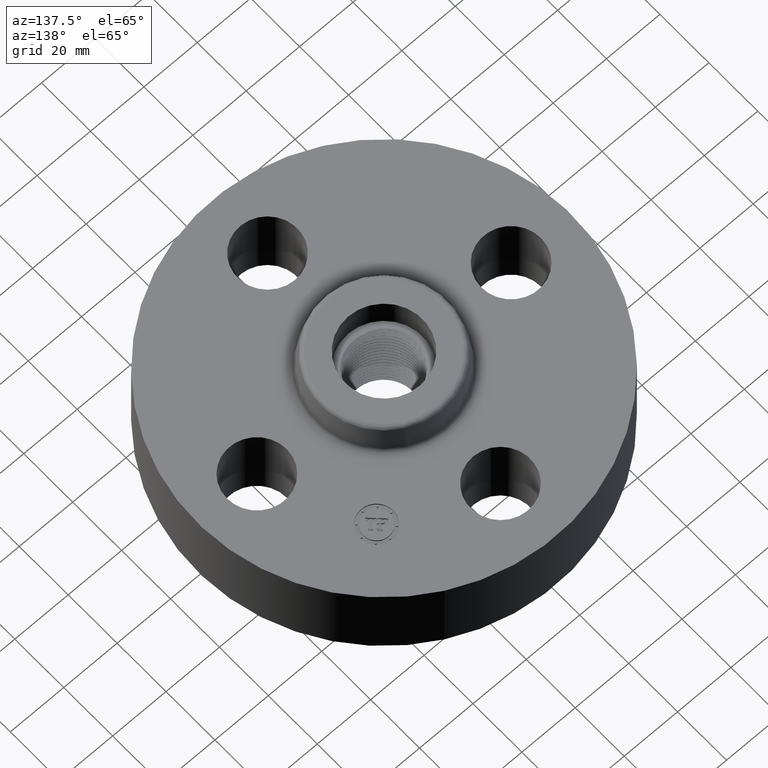
[diagram: clean part render]
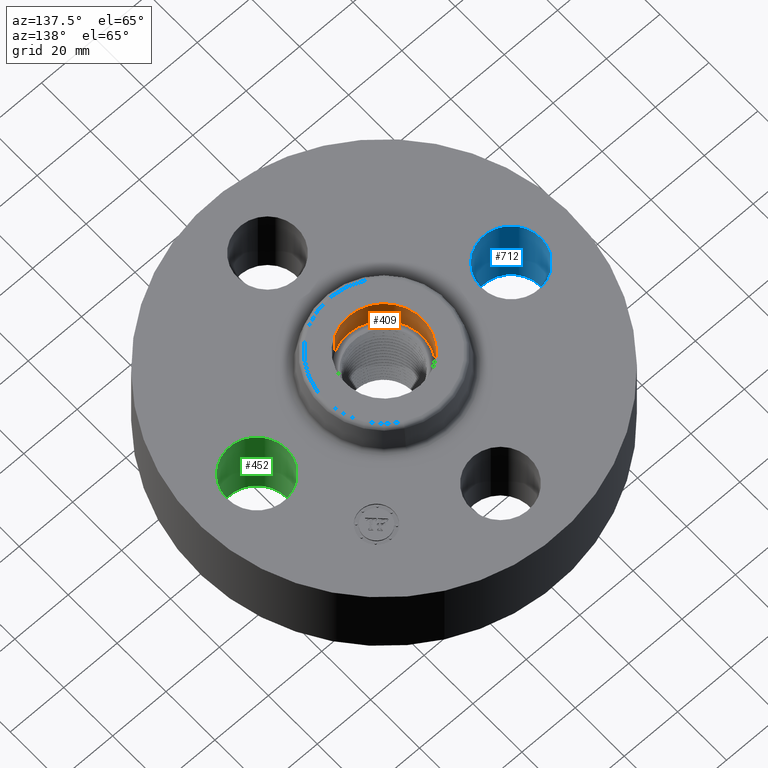
[diagram: same view with three faces highlighted in distinct colors, each labeled with its STEP entity id]
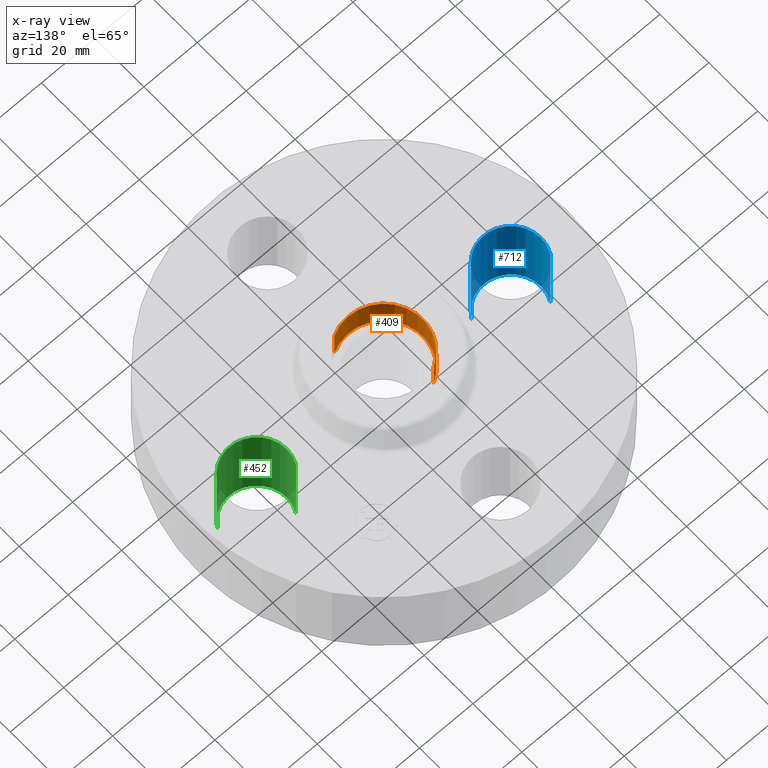
[diagram: x-ray of the same camera — body ghosted, the three highlighted faces saturated]
A machine part, auxiliary view with three faces highlighted in distinct colors.
The next image is the same camera in x-ray (body ghosted, the three faces saturated) — at least one of them is partly hidden behind the body in this view.
Their STEP definitions:

[orange] entity #409 — the highlighted cylindrical surface (partial cylindrical patch) has radius 14.478 mm, axis along (0, 0, 1).
#42=AXIS2_PLACEMENT_3D('Circle Axis2P3D',#40,#41,$) ;
#370=AXIS2_PLACEMENT_3D('Cylinder Axis2P3D',#367,#368,#369) ;
#400=AXIS2_PLACEMENT_3D('Circle Axis2P3D',#398,#399,$) ;
#40=CARTESIAN_POINT('Axis2P3D Location',(0.,0.,1.25000000001)) ;
#44=CARTESIAN_POINT('Vertex',(-0.273272557005,0.50022206028,1.25000000001)) ;
#46=CARTESIAN_POINT('Vertex',(0.273272557005,-0.50022206028,1.25000000001)) ;
#367=CARTESIAN_POINT('Axis2P3D Location',(0.,0.,1.25000000001)) ;
#376=CARTESIAN_POINT('Vertex',(-0.273272557005,0.50022206028,1.69000000001)) ;
#378=CARTESIAN_POINT('Vertex',(0.273272557005,-0.50022206028,1.69000000001)) ;
#381=CARTESIAN_POINT('Line Origine',(-0.273272557005,0.50022206028,1.47000000001)) ;
#386=CARTESIAN_POINT('Line Origine',(0.273272557005,-0.50022206028,1.47000000001)) ;
#398=CARTESIAN_POINT('Axis2P3D Location',(0.,0.,1.69000000001)) ;
#41=DIRECTION('Axis2P3D Direction',(0.,0.,0.0393700787402)) ;
#368=DIRECTION('Axis2P3D Direction',(0.,0.,0.0393700787402)) ;
#369=DIRECTION('Axis2P3D XDirection',(-0.0188750212049,0.0345504945626,0.)) ;
#382=DIRECTION('Vector Direction',(0.,0.,0.0393700787402)) ;
#387=DIRECTION('Vector Direction',(0.,0.,0.0393700787402)) ;
#399=DIRECTION('Axis2P3D Direction',(0.,0.,0.0393700787402)) ;
#383=VECTOR('Line Direction',#382,0.0393700787402) ;
#388=VECTOR('Line Direction',#387,0.0393700787402) ;
#404=ORIENTED_EDGE('',*,*,#402,.F.) ;
#405=ORIENTED_EDGE('',*,*,#390,.F.) ;
#406=ORIENTED_EDGE('',*,*,#48,.F.) ;
#407=ORIENTED_EDGE('',*,*,#385,.T.) ;
#409=ADVANCED_FACE('PartBody',(#408),#371,.F.) ;
#43=CIRCLE('generated circle',#42,0.570000000002) ;
#401=CIRCLE('generated circle',#400,0.570000000002) ;
#371=CYLINDRICAL_SURFACE('generated cylinder',#370,0.570000000002) ;
#48=EDGE_CURVE('',#45,#47,#43,.T.) ;
#385=EDGE_CURVE('',#45,#377,#384,.T.) ;
#390=EDGE_CURVE('',#47,#379,#389,.T.) ;
#402=EDGE_CURVE('',#379,#377,#401,.F.) ;
#403=EDGE_LOOP('',(#404,#405,#406,#407)) ;
#408=FACE_OUTER_BOUND('',#403,.T.) ;
#384=LINE('Line',#381,#383) ;
#389=LINE('Line',#386,#388) ;
#45=VERTEX_POINT('',#44) ;
#47=VERTEX_POINT('',#46) ;
#377=VERTEX_POINT('',#376) ;
#379=VERTEX_POINT('',#378) ;

[blue] entity #712 — the highlighted cylindrical surface (partial cylindrical patch) has radius 11.176 mm, axis along (-0, 0, -1).
#332=AXIS2_PLACEMENT_3D('Circle Axis2P3D',#330,#331,$) ;
#685=AXIS2_PLACEMENT_3D('Cylinder Axis2P3D',#682,#683,#684) ;
#703=AXIS2_PLACEMENT_3D('Circle Axis2P3D',#701,#702,$) ;
#330=CARTESIAN_POINT('Axis2P3D Location',(-1.87500000001,-2.09805925913E-016,0.)) ;
#334=CARTESIAN_POINT('Vertex',(-1.48886367277,-0.210947236987,0.)) ;
#336=CARTESIAN_POINT('Vertex',(-2.26113632724,0.210947236987,0.)) ;
#682=CARTESIAN_POINT('Axis2P3D Location',(-1.87500000001,-2.29621274841E-016,1.24606299213)) ;
#687=CARTESIAN_POINT('Line Origine',(-1.48886367277,-0.210947236987,0.625000000003)) ;
#691=CARTESIAN_POINT('Vertex',(-1.48886367277,-0.210947236987,1.25000000001)) ;
#694=CARTESIAN_POINT('Line Origine',(-2.26113632724,0.210947236987,0.625000000003)) ;
#698=CARTESIAN_POINT('Vertex',(-2.26113632724,0.210947236987,1.25000000001)) ;
#701=CARTESIAN_POINT('Axis2P3D Location',(-1.87500000001,-2.29621274841E-016,1.25000000001)) ;
#331=DIRECTION('Axis2P3D Direction',(0.,0.,-0.0393700787402)) ;
#683=DIRECTION('Axis2P3D Direction',(-0.,0.,-0.0393700787402)) ;
#684=DIRECTION('Axis2P3D XDirection',(-0.0345504945626,0.0188750212049,0.)) ;
#688=DIRECTION('Vector Direction',(0.,0.,-0.0393700787402)) ;
#695=DIRECTION('Vector Direction',(0.,0.,-0.0393700787402)) ;
#702=DIRECTION('Axis2P3D Direction',(-0.,0.,-0.0393700787402)) ;
#689=VECTOR('Line Direction',#688,0.0393700787402) ;
#696=VECTOR('Line Direction',#695,0.0393700787402) ;
#707=ORIENTED_EDGE('',*,*,#693,.F.) ;
#708=ORIENTED_EDGE('',*,*,#338,.T.) ;
#709=ORIENTED_EDGE('',*,*,#700,.T.) ;
#710=ORIENTED_EDGE('',*,*,#705,.F.) ;
#712=ADVANCED_FACE('PartBody',(#711),#686,.F.) ;
#333=CIRCLE('generated circle',#332,0.440000000002) ;
#704=CIRCLE('generated circle',#703,0.440000000002) ;
#686=CYLINDRICAL_SURFACE('generated cylinder',#685,0.440000000002) ;
#338=EDGE_CURVE('',#335,#337,#333,.T.) ;
#693=EDGE_CURVE('',#335,#692,#690,.F.) ;
#700=EDGE_CURVE('',#337,#699,#697,.F.) ;
#705=EDGE_CURVE('',#692,#699,#704,.T.) ;
#706=EDGE_LOOP('',(#707,#708,#709,#710)) ;
#711=FACE_OUTER_BOUND('',#706,.T.) ;
#690=LINE('Line',#687,#689) ;
#697=LINE('Line',#694,#696) ;
#335=VERTEX_POINT('',#334) ;
#337=VERTEX_POINT('',#336) ;
#692=VERTEX_POINT('',#691) ;
#699=VERTEX_POINT('',#698) ;

[green] entity #452 — the highlighted cylindrical surface (partial cylindrical patch) has radius 11.176 mm, axis along (0, -0, -1).
#296=AXIS2_PLACEMENT_3D('Circle Axis2P3D',#294,#295,$) ;
#413=AXIS2_PLACEMENT_3D('Cylinder Axis2P3D',#410,#411,#412) ;
#443=AXIS2_PLACEMENT_3D('Circle Axis2P3D',#441,#442,$) ;
#294=CARTESIAN_POINT('Axis2P3D Location',(1.87500000001,-1.04902962957E-016,0.)) ;
#298=CARTESIAN_POINT('Vertex',(2.26113632724,-0.210947236987,0.)) ;
#300=CARTESIAN_POINT('Vertex',(1.48886367277,0.210947236987,0.)) ;
#410=CARTESIAN_POINT('Axis2P3D Location',(1.87500000001,0.,1.24606299213)) ;
#415=CARTESIAN_POINT('Line Origine',(1.48886367277,0.210947236987,0.625000000003)) ;
#419=CARTESIAN_POINT('Vertex',(1.48886367277,0.210947236987,1.25000000001)) ;
#422=CARTESIAN_POINT('Line Origine',(2.26113632724,-0.210947236987,0.625000000003)) ;
#426=CARTESIAN_POINT('Vertex',(2.26113632724,-0.210947236987,1.25000000001)) ;
#441=CARTESIAN_POINT('Axis2P3D Location',(1.87500000001,0.,1.25000000001)) ;
#295=DIRECTION('Axis2P3D Direction',(0.,0.,-0.0393700787402)) ;
#411=DIRECTION('Axis2P3D Direction',(0.,-0.,-0.0393700787402)) ;
#412=DIRECTION('Axis2P3D XDirection',(0.0345504945626,-0.0188750212049,0.)) ;
#416=DIRECTION('Vector Direction',(0.,0.,-0.0393700787402)) ;
#423=DIRECTION('Vector Direction',(0.,0.,-0.0393700787402)) ;
#442=DIRECTION('Axis2P3D Direction',(0.,-0.,-0.0393700787402)) ;
#417=VECTOR('Line Direction',#416,0.0393700787402) ;
#424=VECTOR('Line Direction',#423,0.0393700787402) ;
#447=ORIENTED_EDGE('',*,*,#428,.F.) ;
#448=ORIENTED_EDGE('',*,*,#302,.T.) ;
#449=ORIENTED_EDGE('',*,*,#421,.T.) ;
#450=ORIENTED_EDGE('',*,*,#445,.F.) ;
#452=ADVANCED_FACE('PartBody',(#451),#414,.F.) ;
#297=CIRCLE('generated circle',#296,0.440000000002) ;
#444=CIRCLE('generated circle',#443,0.440000000002) ;
#414=CYLINDRICAL_SURFACE('generated cylinder',#413,0.440000000002) ;
#302=EDGE_CURVE('',#299,#301,#297,.T.) ;
#421=EDGE_CURVE('',#301,#420,#418,.F.) ;
#428=EDGE_CURVE('',#299,#427,#425,.F.) ;
#445=EDGE_CURVE('',#427,#420,#444,.T.) ;
#446=EDGE_LOOP('',(#447,#448,#449,#450)) ;
#451=FACE_OUTER_BOUND('',#446,.T.) ;
#418=LINE('Line',#415,#417) ;
#425=LINE('Line',#422,#424) ;
#299=VERTEX_POINT('',#298) ;
#301=VERTEX_POINT('',#300) ;
#420=VERTEX_POINT('',#419) ;
#427=VERTEX_POINT('',#426) ;